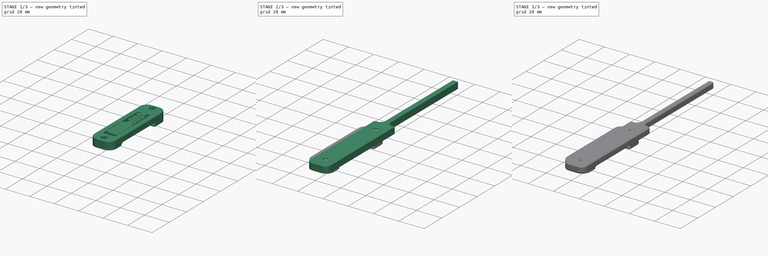
[diagram: build sequence overview — one tinted view per stage of 3, left to right]
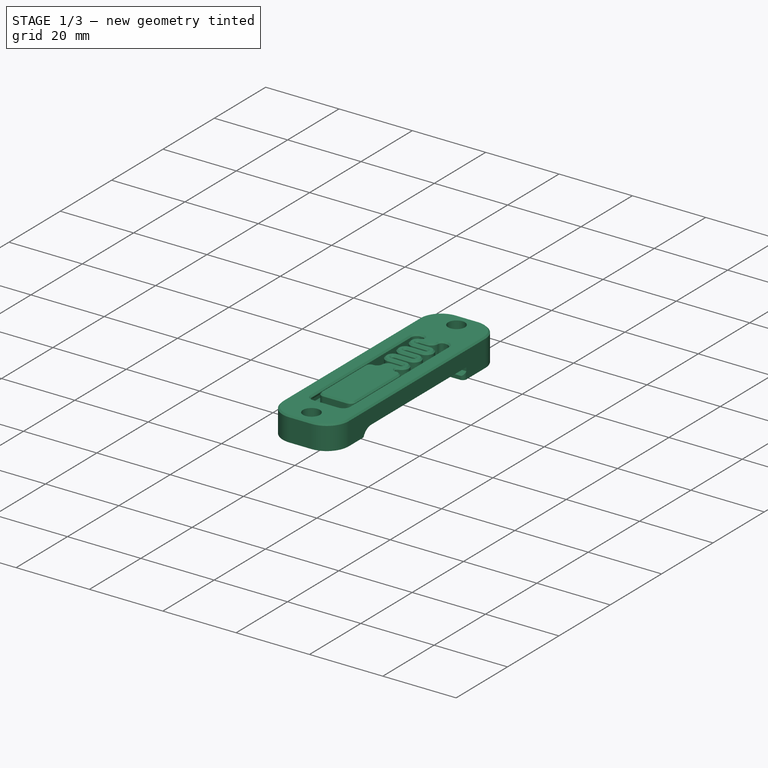
[diagram: stage 1 of 3 — iso view after this stage's code; geometry added in this stage tinted green]
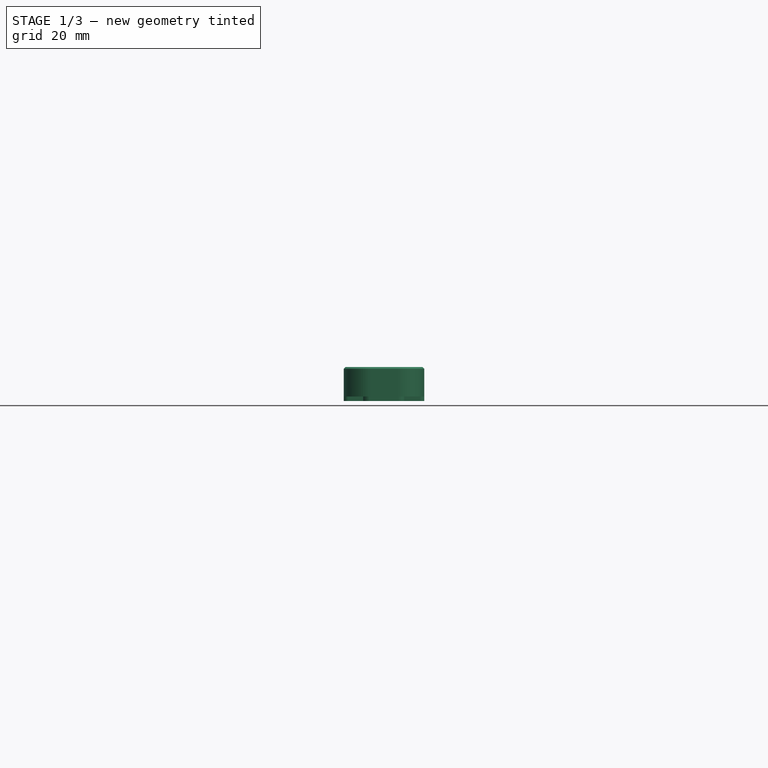
[diagram: stage 1 of 3 — front view after this stage's code; geometry added in this stage tinted green]
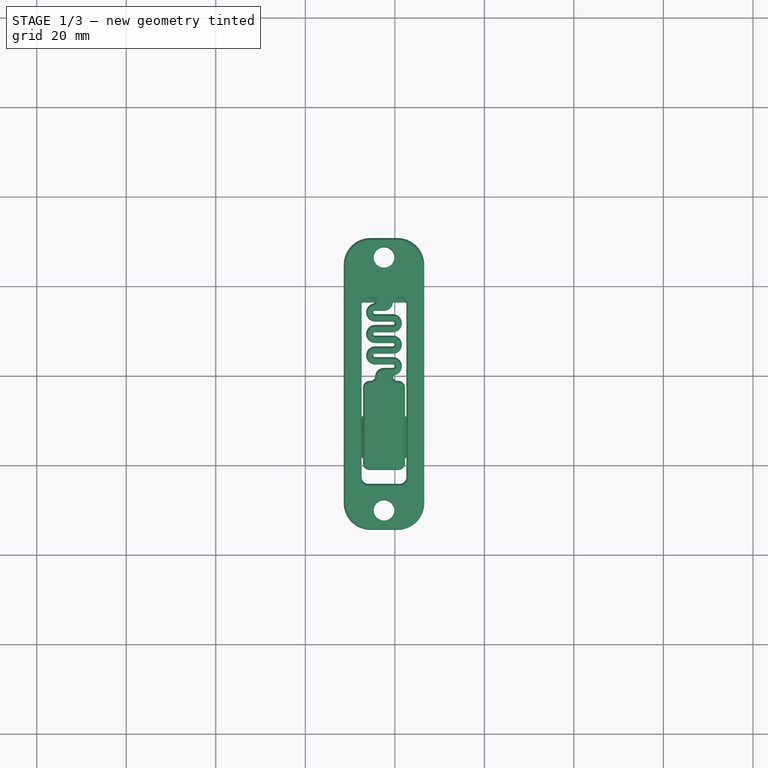
[diagram: stage 1 of 3 — top view after this stage's code; geometry added in this stage tinted green]
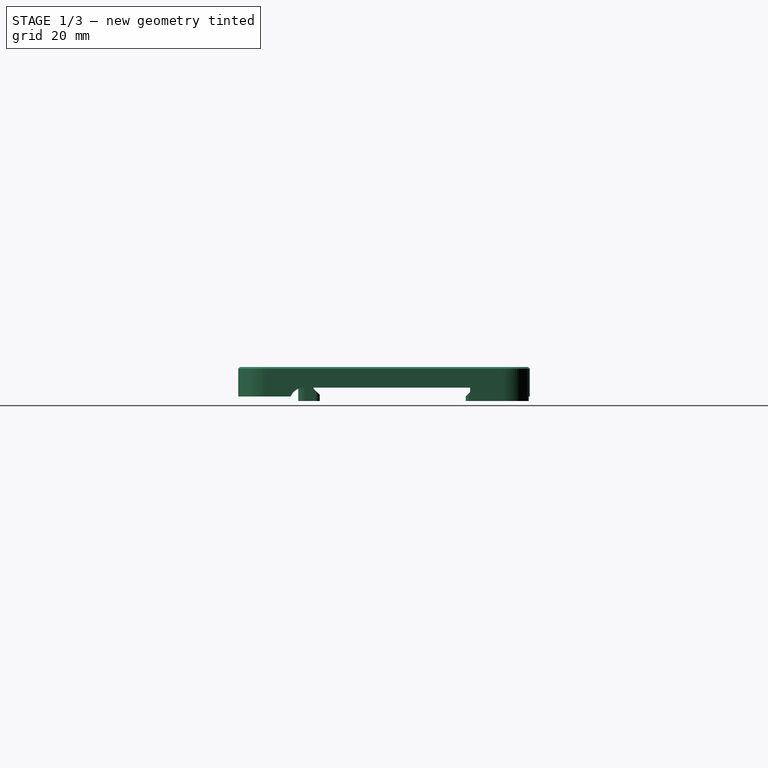
[diagram: stage 1 of 3 — right view after this stage's code; geometry added in this stage tinted green]
FCSTD DOCUMENT  (FreeCAD 0.20R29603 (Git))
Label: din caliper
License: All rights reserved
LicenseURL: http://en.wikipedia.org/wiki/All_rights_reserved
objects: Sketcher::SketchObject×2, PartDesign::Fillet×2, PartDesign::Chamfer×2, PartDesign::Body×2, PartDesign::Pad×1, Part::Feature×1, PartDesign::FeatureBase×1, PartDesign::Pocket×1
note: 18 computed .brp shape members not serialized (recipe doc carries the construction recipe); baked Part::Feature solids carry a one-line shape summary decoded from their .brp

FEATURE [PartDesign::Body] Body
  Group = -> [Sketch,Pad,Fillet,Fillet001,Chamfer]
  Origin = -> Origin
  Tip = -> Chamfer
FEATURE [Part::Feature] sc  label="Terminal_Block_DIN_Voron_Remix001001 (Solid)"
  shape: bbox 18 x 65.1 x 7.6 mm, 4802 faces (baked)
FEATURE [PartDesign::FeatureBase] BaseFeature
  BaseFeature = -> sc
FEATURE [Sketcher::SketchObject] Sketch001
  ExternalGeometry = -> [BaseFeature]
  FullyConstrained = true
  MapMode = 5
  Placement = pos=(0,0,4.31025) rot=(0,0,1;0rad)
  Support = -> [BaseFeature]
  sketch-geometry (4):
    g0: Circle CenterX=-2.41836 CenterY=26.4248 CenterZ=0 NormalX=0 NormalY=0 NormalZ=1 AngleXU=0 Radius=1.7
    g1: Circle CenterX=-2.41836 CenterY=-30.0752 CenterZ=0 NormalX=0 NormalY=0 NormalZ=1 AngleXU=0 Radius=1.7
    g2: Circle CenterX=-2.41836 CenterY=-30.0752 CenterZ=0 NormalX=0 NormalY=0 NormalZ=1 AngleXU=0 Radius=2.3
    g3: Circle CenterX=-2.41836 CenterY=26.4248 CenterZ=0 NormalX=0 NormalY=0 NormalZ=1 AngleXU=0 Radius=2.3
  constraints (10):
    c: PointOnObject(g-3,g0)
    c: PointOnObject(g-4,g0)
    c: PointOnObject(g-5,g0)
    c: PointOnObject(g-6,g1)
    c: PointOnObject(g-7,g1)
    c: PointOnObject(g-8,g1)
    c: Coincident(g2,g1)
    c: Coincident(g3,g0)
    c: Diameter(g3) = 4.6
    c: Equal(g3,g2)
FEATURE [PartDesign::Pocket] Pocket
  BaseFeature = -> BaseFeature
  Direction = (0,0,-1)
  Length = 5
  Length2 = 5
  Profile = -> Sketch001
  ReferenceAxis = -> Sketch001 [N_Axis]
  Type = 1
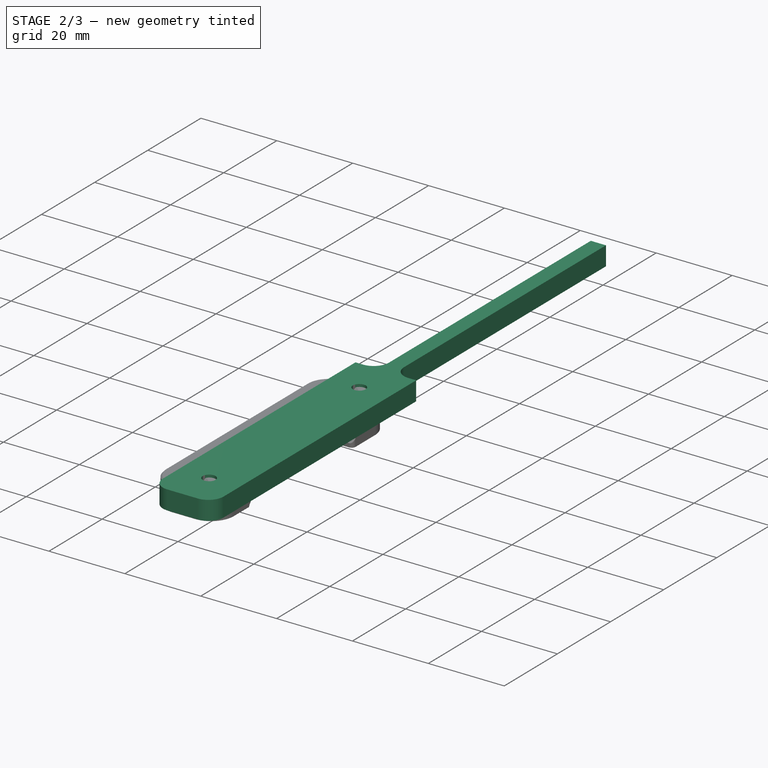
[diagram: stage 2 of 3 — iso view after this stage's code; geometry added in this stage tinted green]
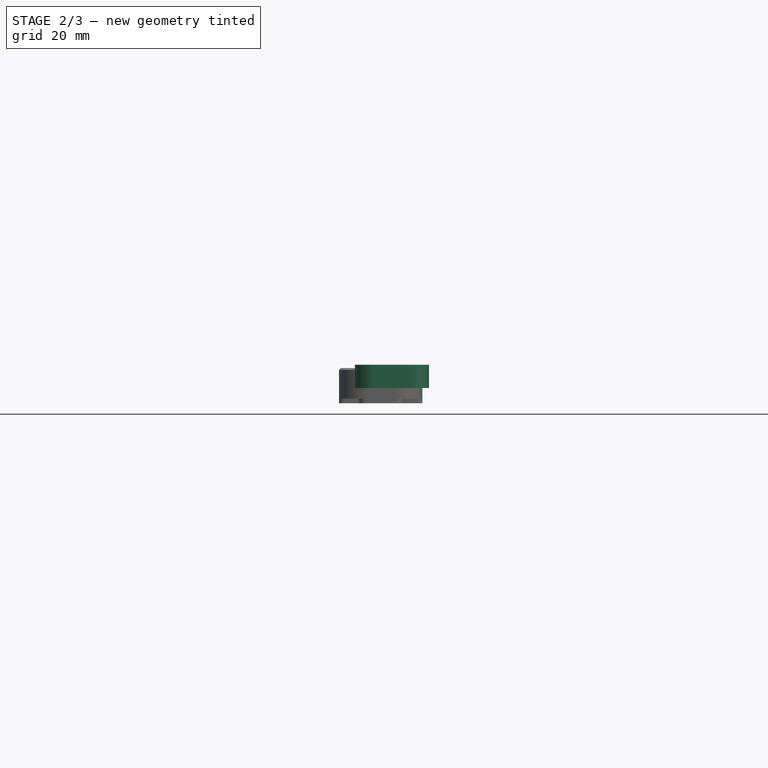
[diagram: stage 2 of 3 — front view after this stage's code; geometry added in this stage tinted green]
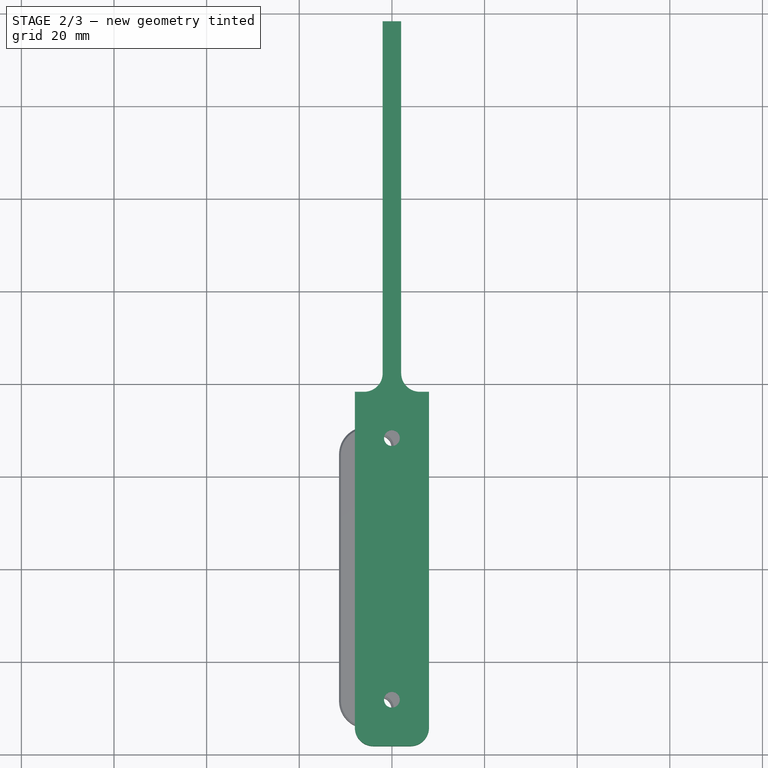
[diagram: stage 2 of 3 — top view after this stage's code; geometry added in this stage tinted green]
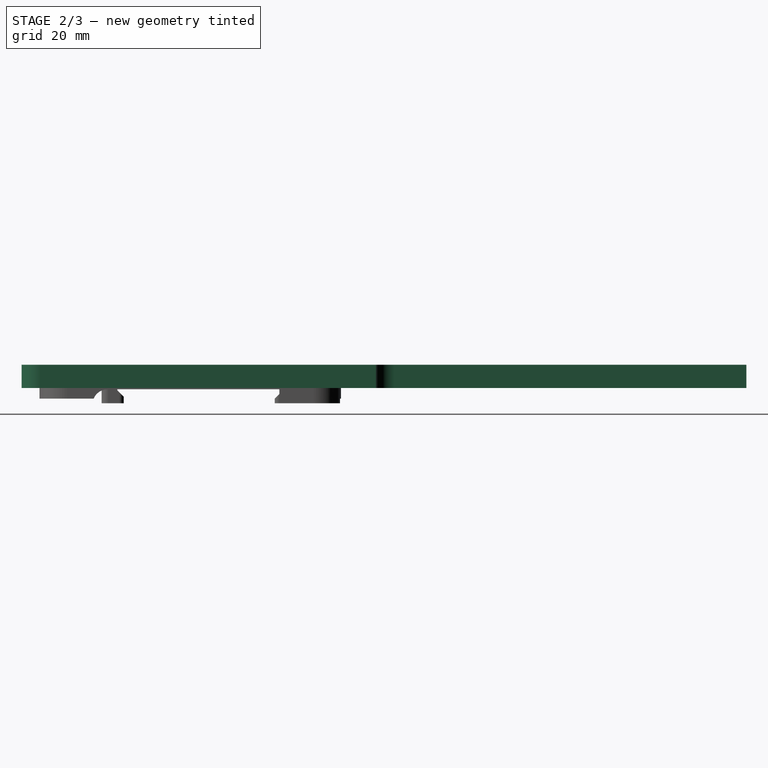
[diagram: stage 2 of 3 — right view after this stage's code; geometry added in this stage tinted green]
FEATURE [Sketcher::SketchObject] Sketch
  FullyConstrained = true
  MapMode = 5
  Support = -> [XY_Plane]
  sketch-geometry (10):
    g0: Circle CenterX=0 CenterY=-28.25 CenterZ=0 NormalX=0 NormalY=0 NormalZ=1 AngleXU=0 Radius=1.7
    g1: Circle CenterX=0 CenterY=28.25 CenterZ=0 NormalX=0 NormalY=0 NormalZ=1 AngleXU=0 Radius=1.7
    g2: LineSegment StartX=-8 StartY=38.25 StartZ=0 EndX=-8 EndY=-38.25 EndZ=0
    g3: LineSegment StartX=-8 StartY=-38.25 StartZ=0 EndX=8 EndY=-38.25 EndZ=0
    g4: LineSegment StartX=8 StartY=-38.25 StartZ=0 EndX=8 EndY=38.25 EndZ=0
    g5: LineSegment StartX=2 StartY=38.25 StartZ=0 EndX=2 EndY=118.25 EndZ=0
    g6: LineSegment StartX=2 StartY=118.25 StartZ=0 EndX=-2 EndY=118.25 EndZ=0
    g7: LineSegment StartX=-2 StartY=118.25 StartZ=0 EndX=-2 EndY=38.25 EndZ=0
    g8: LineSegment StartX=-8 StartY=38.25 StartZ=0 EndX=-2 EndY=38.25 EndZ=0
    g9: LineSegment StartX=2 StartY=38.25 StartZ=0 EndX=8 EndY=38.25 EndZ=0
  constraints (27):
    c: Vertical(g1,g0)
    c: DistanceY(g0,g1) = 56.5
    c: Symmetric(g0,g1,g-1)
    c: Diameter(g0) = 3.4
    c: Equal(g0,g1)
    c: Vertical(g2)
    c: Coincident(g2,g3)
    c: Horizontal(g3)
    c: Coincident(g3,g4)
    c: Vertical(g4)
    c: Vertical(g5)
    c: Coincident(g5,g6)
    c: Coincident(g6,g7)
    c: Vertical(g7)
    c: Coincident(g8,g2)
    c: Coincident(g8,g7)
    c: Coincident(g9,g5)
    c: Coincident(g9,g4)
    c: Horizontal(g8)
    c: Horizontal(g9)
    c: Symmetric(g5,g7,g-2)
    c: Symmetric(g4,g2,g-1)
    c: Horizontal(g6)
    c: DistanceY(g5,g5) = 80
    c: DistanceY(g3,g0) = 10
    c: DistanceX(g2,g4) = 16
    c: DistanceX(g6,g6) = 4
FEATURE [PartDesign::Pad] Pad
  Direction = (0,0,1)
  Length = 5
  Length2 = 10
  Profile = -> Sketch
  ReferenceAxis = -> Sketch [N_Axis]
  Type = 0
FEATURE [PartDesign::Fillet] Fillet
  Base = -> Pad [Edge1,Edge8,Edge17,Edge14]
  BaseFeature = -> Pad
  Radius = 4
  SupportTransform = false
  UseAllEdges = false
FEATURE [PartDesign::Chamfer] Chamfer001
  Angle = 45
  Base = -> Pocket [Edge2688,Edge2687,Edge3982,Edge458]
  BaseFeature = -> Pocket
  ChamferType = 0
  FlipDirection = false
  Size = 0.5
  Size2 = 1
  SupportTransform = false
  UseAllEdges = false
FEATURE [PartDesign::Body] Body001
  BaseFeature = -> sc
  Group = -> [BaseFeature,Sketch001,Pocket,Chamfer001]
  Origin = -> Origin001
  Tip = -> Chamfer001
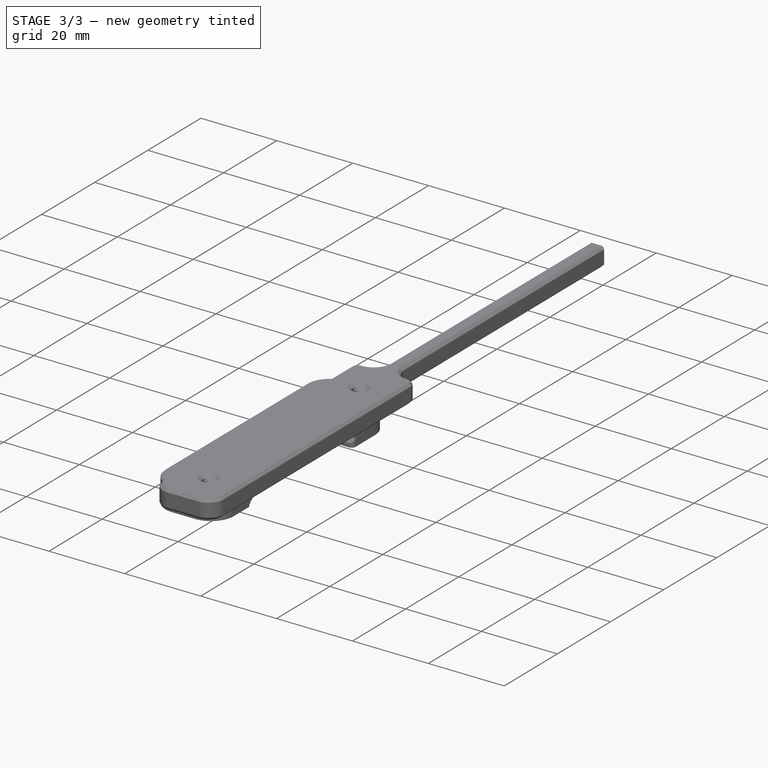
[diagram: stage 3 of 3 — iso view after this stage's code; geometry added in this stage tinted green]
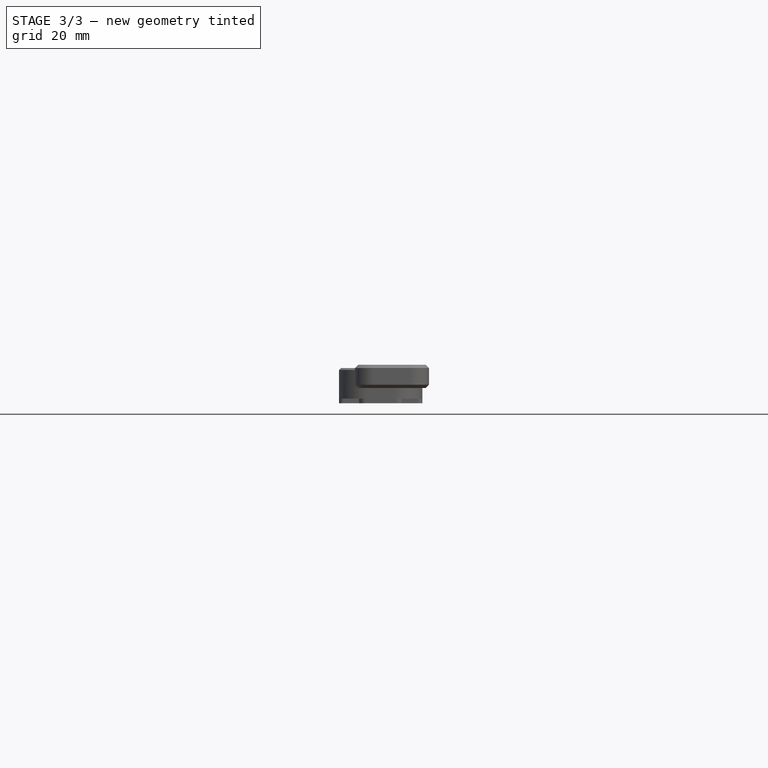
[diagram: stage 3 of 3 — front view after this stage's code; geometry added in this stage tinted green]
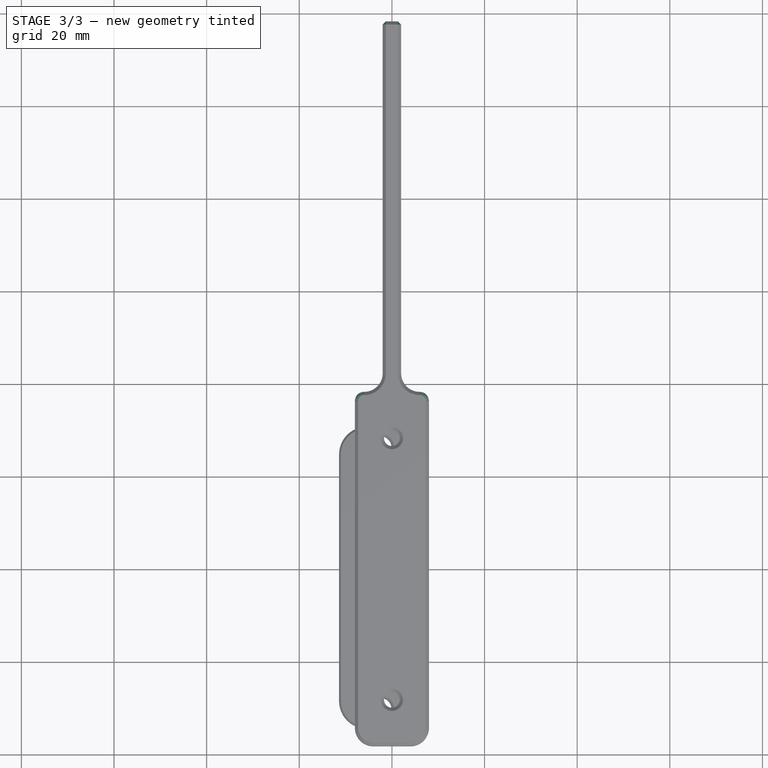
[diagram: stage 3 of 3 — top view after this stage's code; geometry added in this stage tinted green]
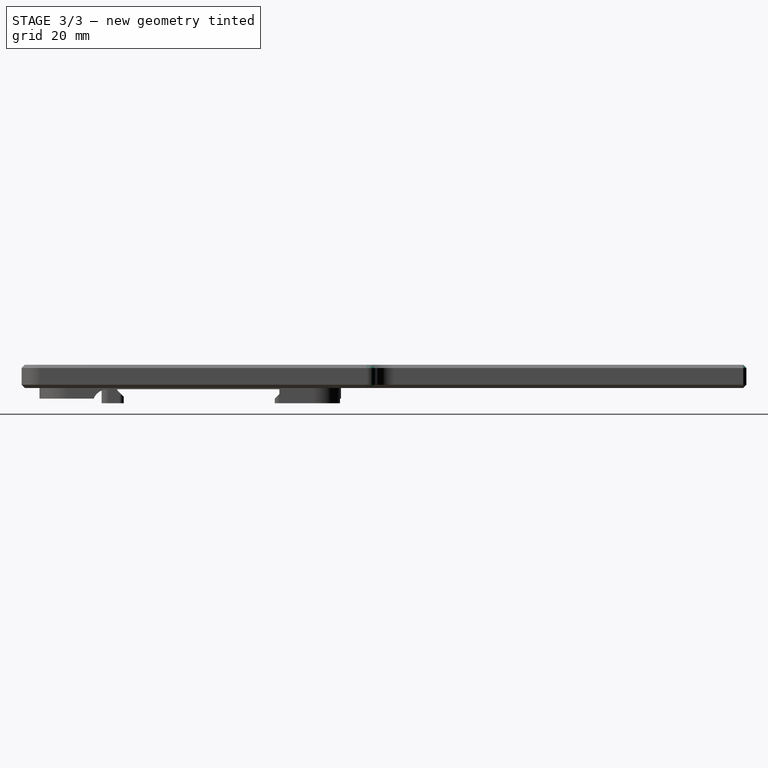
[diagram: stage 3 of 3 — right view after this stage's code; geometry added in this stage tinted green]
FEATURE [PartDesign::Fillet] Fillet001
  Base = -> Fillet [Edge33,Edge38]
  BaseFeature = -> Fillet
  Radius = 1.99
  SupportTransform = false
  UseAllEdges = false
FEATURE [PartDesign::Chamfer] Chamfer
  Angle = 45
  Base = -> Fillet001 [Face18,Face1,Face8]
  BaseFeature = -> Fillet001
  ChamferType = 0
  FlipDirection = false
  Size = 0.7
  Size2 = 1
  SupportTransform = false
  UseAllEdges = false
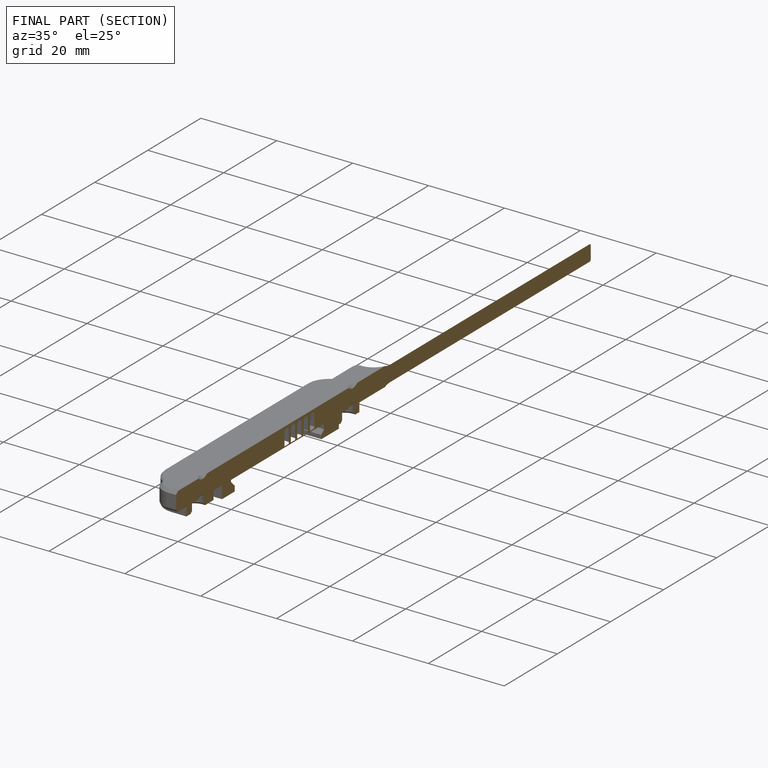
[diagram: finished part — half-section view (interior)]
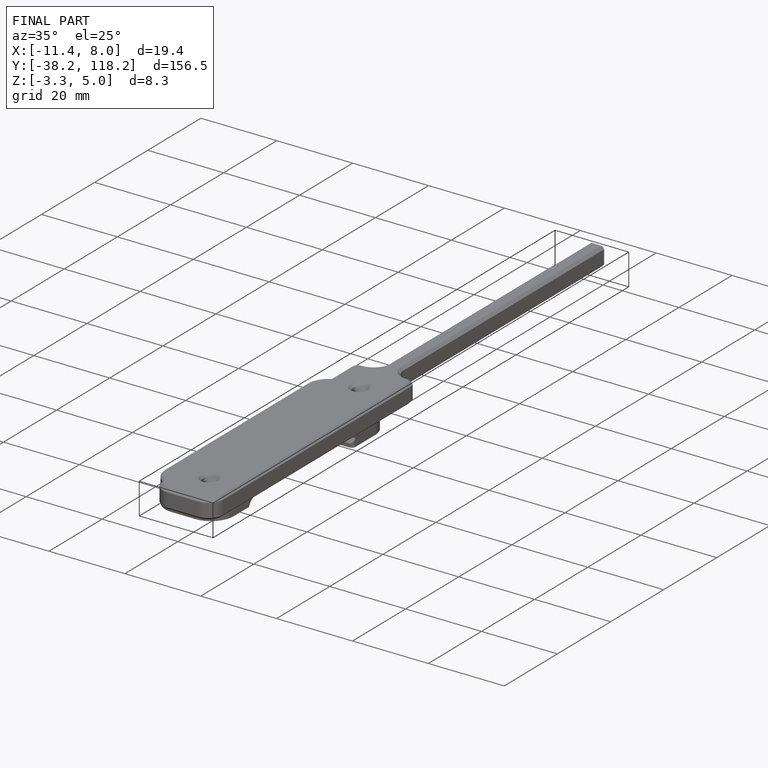
[diagram: finished part — iso view with bounding-box wireframe]
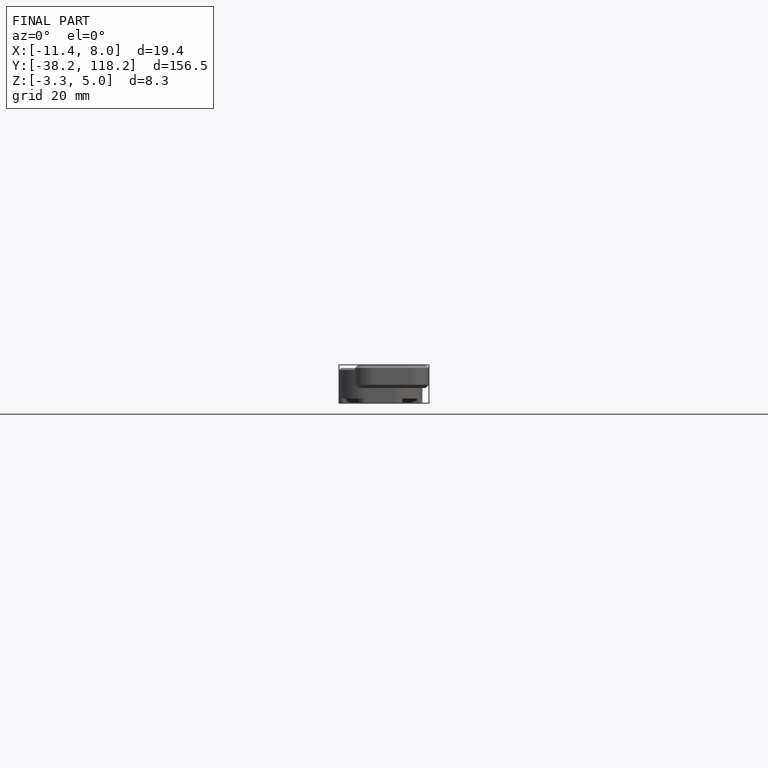
[diagram: finished part — front view with bounding-box wireframe]
